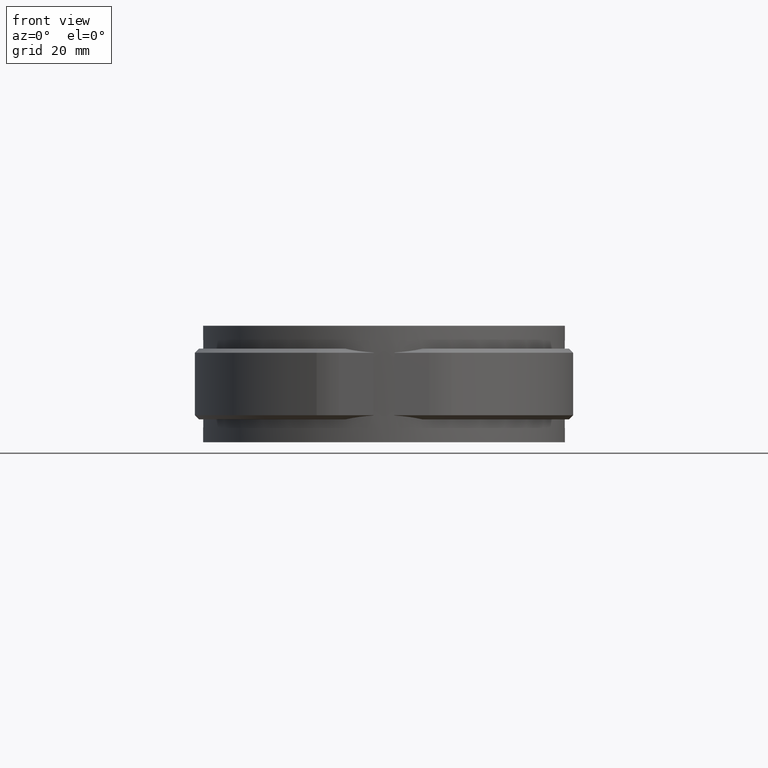
[diagram: clean part render]
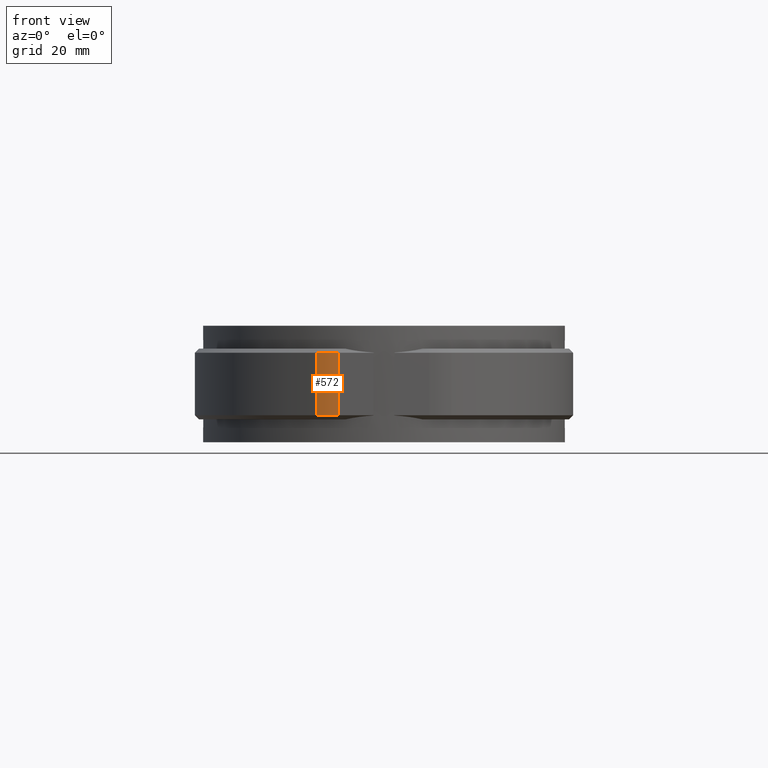
[diagram: same view with one face highlighted and labeled with its STEP entity id]
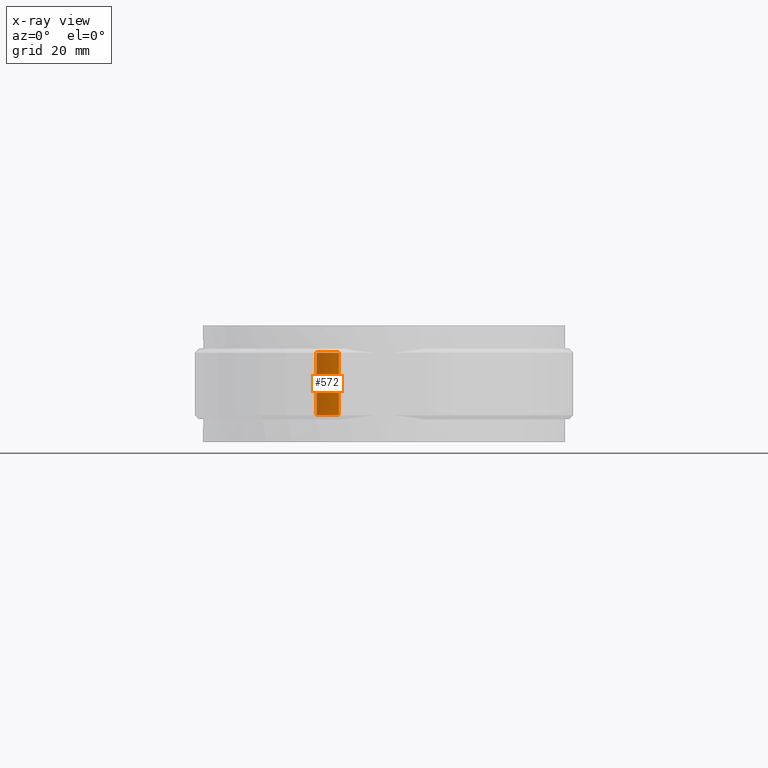
[diagram: x-ray of the same camera — body ghosted, the highlighted face saturated]
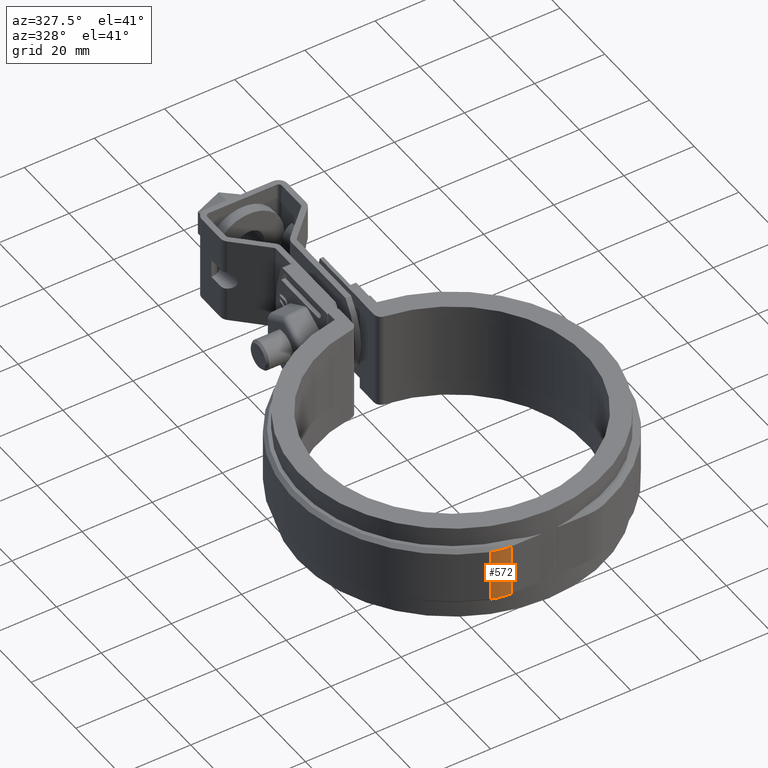
[diagram: same view with one face highlighted and labeled with its STEP entity id]
A machine part, front view. The second image highlights one B-rep face of the part: STEP entity #572.
The next image is the same camera in x-ray: the body ghosted, the highlighted face saturated — about 0% of this face is hidden behind the body in this view.
A second angle (auxiliary view) of the same face is appended — the face is thin or edge-on in the first view.
In plain terms, the highlighted cylindrical surface (partial cylindrical patch) has radius 15 mm, axis along (0, 0, 1).
Its self-contained STEP definition (entity closure, byte-faithful):
#572 = ADVANCED_FACE( '', ( #1054 ), #1055, .T. );
#1054 = FACE_OUTER_BOUND( '', #2172, .T. );
#1055 = CYLINDRICAL_SURFACE( '', #2173, 15.0000000000000 );
#2172 = EDGE_LOOP( '', ( #5096, #5097, #5098, #5099 ) );
#2173 = AXIS2_PLACEMENT_3D( '', #5100, #5101, #5102 );
#5096 = ORIENTED_EDGE( '', *, *, #7442, .T. );
#5097 = ORIENTED_EDGE( '', *, *, #7480, .T. );
#5098 = ORIENTED_EDGE( '', *, *, #7664, .F. );
#5099 = ORIENTED_EDGE( '', *, *, #7665, .T. );
#5100 = CARTESIAN_POINT( '', ( -10.8627804912002, -28.5000000000000, 8.50000000000000 ) );
#5101 = DIRECTION( '', ( 0.000000000000000, 0.000000000000000, 1.00000000000000 ) );
#5102 = DIRECTION( '', ( 0.109890109890110, -0.993943742748220, 0.000000000000000 ) );
#7442 = EDGE_CURVE( '', #8552, #8557, #8559, .T. );
#7480 = EDGE_CURVE( '', #8557, #8620, #8625, .T. );
#7664 = EDGE_CURVE( '', #8685, #8620, #8938, .T. );
#7665 = EDGE_CURVE( '', #8685, #8552, #8939, .T. );
#8552 = VERTEX_POINT( '', #11623 );
#8557 = VERTEX_POINT( '', #11629 );
#8559 = LINE( '', #11631, #11632 );
#8620 = VERTEX_POINT( '', #11719 );
#8625 = CIRCLE( '', #11727, 15.0000000000000 );
#8685 = VERTEX_POINT( '', #11821 );
#8938 = LINE( '', #12688, #12689 );
#8939 = CIRCLE( '', #12690, 15.0000000000000 );
#11623 = CARTESIAN_POINT( '', ( -16.2051315524462, -42.5163934426229, 7.49999999999995 ) );
#11629 = CARTESIAN_POINT( '', ( -16.2051315524462, -42.5163934426229, -7.49999999999995 ) );
#11631 = CARTESIAN_POINT( '', ( -16.2051315524462, -42.5163934426230, 8.50000000000000 ) );
#11632 = VECTOR( '', #14467, 1000.00000000000 );
#11719 = CARTESIAN_POINT( '', ( -10.8627804912002, -43.5000000000000, -7.50000000000000 ) );
#11727 = AXIS2_PLACEMENT_3D( '', #14527, #14528, #14529 );
#11821 = CARTESIAN_POINT( '', ( -10.8627804912002, -43.5000000000000, 7.50000000000000 ) );
#12688 = CARTESIAN_POINT( '', ( -10.8627804912002, -43.5000000000000, 8.50000000000000 ) );
#12689 = VECTOR( '', #14709, 1000.00000000000 );
#12690 = AXIS2_PLACEMENT_3D( '', #14710, #14711, #14712 );
#14467 = DIRECTION( '', ( 0.000000000000000, 0.000000000000000, -1.00000000000000 ) );
#14527 = CARTESIAN_POINT( '', ( -10.8627804912002, -28.5000000000000, -7.50000000000000 ) );
#14528 = DIRECTION( '', ( 0.000000000000000, 0.000000000000000, 1.00000000000000 ) );
#14529 = DIRECTION( '', ( 1.00000000000000, 0.000000000000000, 0.000000000000000 ) );
#14709 = DIRECTION( '', ( 0.000000000000000, 0.000000000000000, -1.00000000000000 ) );
#14710 = CARTESIAN_POINT( '', ( -10.8627804912002, -28.5000000000000, 7.50000000000000 ) );
#14711 = DIRECTION( '', ( 0.000000000000000, 0.000000000000000, -1.00000000000000 ) );
#14712 = DIRECTION( '', ( -1.00000000000000, 0.000000000000000, 0.000000000000000 ) );